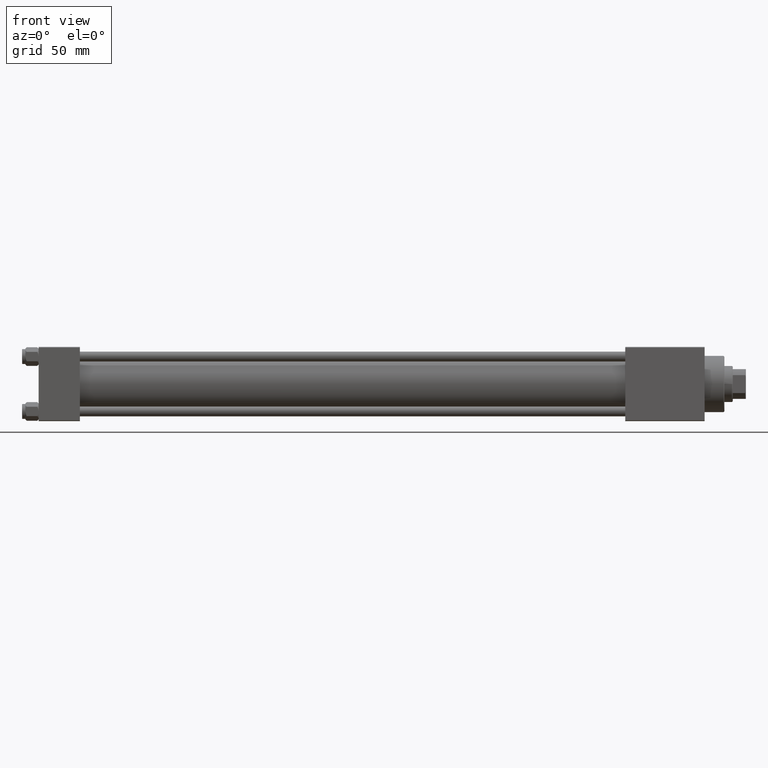
[diagram: clean part render]
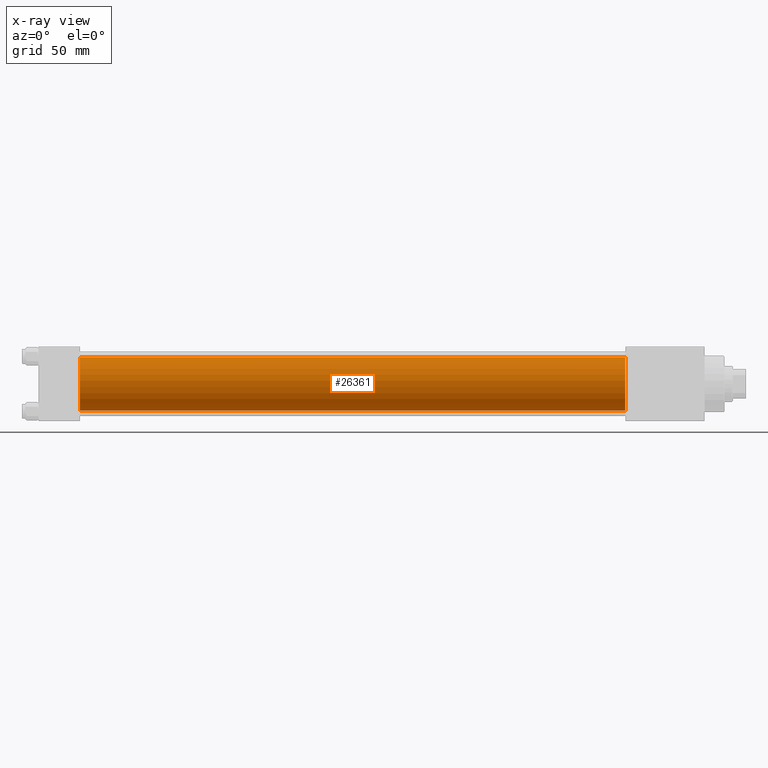
[diagram: x-ray — body ghosted, one internal face saturated and labeled with its STEP entity id]
A machine part, front view, then the same camera in x-ray: the body is ghosted and one INTERNAL B-rep face — a face not visible from any outside direction — is saturated and labeled: STEP entity #26361.
In plain terms, the highlighted cylindrical surface (edge-blend (fillet) strip) has radius 16 mm, axis along (-1, -0, -0).
Its self-contained STEP definition (entity closure, byte-faithful):
#934 = ORIENTED_EDGE ( 'NONE', *, *, #44609, .F. ) ;
#1063 = VECTOR ( 'NONE', #26748, 1000.000000000000000 ) ;
#1789 = DIRECTION ( 'NONE',  ( 0.000000000000000000, 0.000000000000000000, -1.000000000000000000 ) ) ;
#4691 = DIRECTION ( 'NONE',  ( 1.000000000000000000, 0.000000000000000000, 0.000000000000000000 ) ) ;
#4765 = CARTESIAN_POINT ( 'NONE',  ( 355.0000000000000568, -6.426503353294456087E-16, -16.00000000000000000 ) ) ;
#5040 = CARTESIAN_POINT ( 'NONE',  ( 25.00000000000000000, -6.426503353294456087E-16, -16.00000000000000000 ) ) ;
#5667 = EDGE_LOOP ( 'NONE', ( #37259, #20227, #934, #50215 ) ) ;
#5711 = CARTESIAN_POINT ( 'NONE',  ( 355.0000000000000568, -2.602085213965210642E-15, 0.000000000000000000 ) ) ;
#6872 = EDGE_CURVE ( 'NONE', #39167, #35446, #12525, .T. ) ;
#8456 = DIRECTION ( 'NONE',  ( -1.000000000000000000, -0.000000000000000000, -0.000000000000000000 ) ) ;
#8595 = AXIS2_PLACEMENT_3D ( 'NONE', #5711, #9509, #10260 ) ;
#9509 = DIRECTION ( 'NONE',  ( -1.000000000000000000, -0.000000000000000000, -0.000000000000000000 ) ) ;
#10260 = DIRECTION ( 'NONE',  ( 0.000000000000000000, 0.000000000000000000, 1.000000000000000000 ) ) ;
#12525 = LINE ( 'NONE', #35350, #22434 ) ;
#14929 = CIRCLE ( 'NONE', #38384, 16.00000000000000000 ) ;
#16184 = EDGE_CURVE ( 'NONE', #18242, #41484, #19650, .T. ) ;
#18242 = VERTEX_POINT ( 'NONE', #4765 ) ;
#19650 = LINE ( 'NONE', #45771, #1063 ) ;
#19851 = CARTESIAN_POINT ( 'NONE',  ( 355.0000000000000568, -2.602085213965210642E-15, 0.000000000000000000 ) ) ;
#20227 = ORIENTED_EDGE ( 'NONE', *, *, #16184, .T. ) ;
#22124 = EDGE_CURVE ( 'NONE', #39167, #18242, #14929, .T. ) ;
#22434 = VECTOR ( 'NONE', #8456, 1000.000000000000000 ) ;
#24227 = DIRECTION ( 'NONE',  ( 0.000000000000000000, 0.000000000000000000, -1.000000000000000000 ) ) ;
#26361 = ADVANCED_FACE ( 'NONE', ( #45013 ), #40461, .F. ) ;
#26748 = DIRECTION ( 'NONE',  ( -1.000000000000000000, -0.000000000000000000, -0.000000000000000000 ) ) ;
#27009 = CARTESIAN_POINT ( 'NONE',  ( 25.00000000000000000, -2.602085213965210642E-15, 0.000000000000000000 ) ) ;
#32469 = CARTESIAN_POINT ( 'NONE',  ( 355.0000000000000568, -2.602085213965210642E-15, 16.00000000000000000 ) ) ;
#35350 = CARTESIAN_POINT ( 'NONE',  ( 355.0000000000000568, -2.602085213965210642E-15, 16.00000000000000000 ) ) ;
#35446 = VERTEX_POINT ( 'NONE', #45243 ) ;
#37259 = ORIENTED_EDGE ( 'NONE', *, *, #22124, .T. ) ;
#38384 = AXIS2_PLACEMENT_3D ( 'NONE', #19851, #48962, #1789 ) ;
#39167 = VERTEX_POINT ( 'NONE', #32469 ) ;
#39334 = AXIS2_PLACEMENT_3D ( 'NONE', #27009, #4691, #24227 ) ;
#40461 = CYLINDRICAL_SURFACE ( 'NONE', #8595, 16.00000000000000000 ) ;
#41484 = VERTEX_POINT ( 'NONE', #5040 ) ;
#44609 = EDGE_CURVE ( 'NONE', #35446, #41484, #46626, .T. ) ;
#45013 = FACE_OUTER_BOUND ( 'NONE', #5667, .T. ) ;
#45243 = CARTESIAN_POINT ( 'NONE',  ( 25.00000000000000000, -2.602085213965210642E-15, 16.00000000000000000 ) ) ;
#45771 = CARTESIAN_POINT ( 'NONE',  ( 355.0000000000000568, -6.426503353294456087E-16, -16.00000000000000000 ) ) ;
#46626 = CIRCLE ( 'NONE', #39334, 16.00000000000000000 ) ;
#48962 = DIRECTION ( 'NONE',  ( 1.000000000000000000, 0.000000000000000000, 0.000000000000000000 ) ) ;
#50215 = ORIENTED_EDGE ( 'NONE', *, *, #6872, .F. ) ;